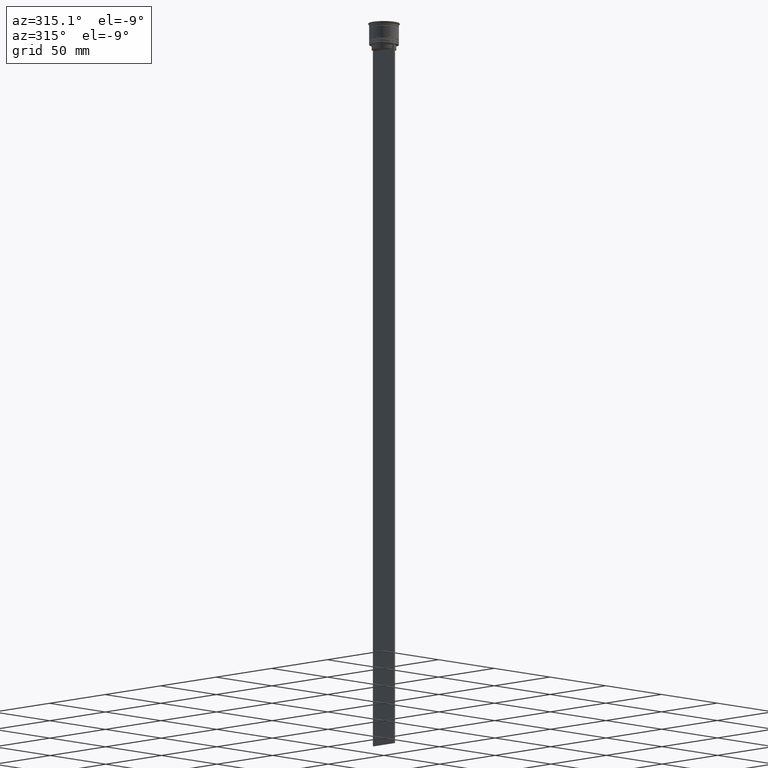
[diagram: clean part render]
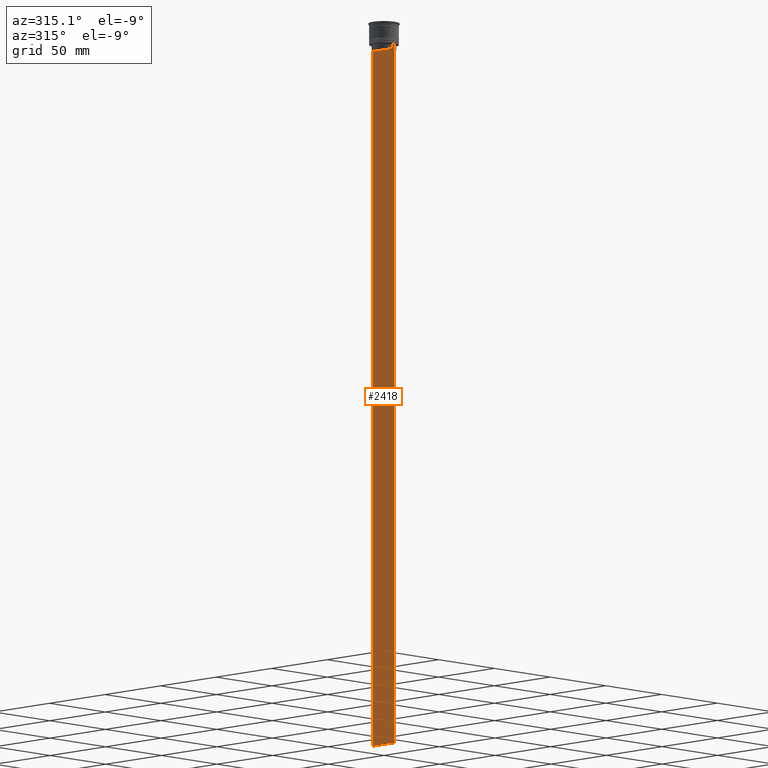
[diagram: same view with one face highlighted and labeled with its STEP entity id]
A machine part, auxiliary view. The second image highlights one B-rep face of the part: STEP entity #2418.
In plain terms, the highlighted planar face has unit normal (-1, 0, 0).
Its self-contained STEP definition (entity closure, byte-faithful):
#25 = VERTEX_POINT ( 'NONE', #2626 ) ;
#42 = CARTESIAN_POINT ( 'NONE',  ( -0.5000000000000000000, -8.051152795888546265, -14.33334334204685057 ) ) ;
#86 = LINE ( 'NONE', #1737, #244 ) ;
#113 = ORIENTED_EDGE ( 'NONE', *, *, #2617, .F. ) ;
#137 = DIRECTION ( 'NONE',  ( 0.000000000000000000, 0.000000000000000000, -1.000000000000000000 ) ) ;
#155 = DIRECTION ( 'NONE',  ( 0.000000000000000000, -1.000000000000000000, 0.000000000000000000 ) ) ;
#244 = VECTOR ( 'NONE', #2581, 1000.000000000000000 ) ;
#245 = VECTOR ( 'NONE', #935, 1000.000000000000000 ) ;
#263 = EDGE_CURVE ( 'NONE', #25, #2475, #1530, .T. ) ;
#289 = LINE ( 'NONE', #1512, #509 ) ;
#325 = ORIENTED_EDGE ( 'NONE', *, *, #2365, .F. ) ;
#340 = VERTEX_POINT ( 'NONE', #2425 ) ;
#356 = PLANE ( 'NONE',  #2187 ) ;
#372 = LINE ( 'NONE', #2005, #1143 ) ;
#379 = ORIENTED_EDGE ( 'NONE', *, *, #1345, .F. ) ;
#428 = CARTESIAN_POINT ( 'NONE',  ( -0.5000000000000000000, 8.385105843100605583, -14.00000000000000178 ) ) ;
#437 = DIRECTION ( 'NONE',  ( 0.000000000000000000, -1.000000000000000000, 0.000000000000000000 ) ) ;
#440 = VERTEX_POINT ( 'NONE', #2241 ) ;
#442 = DIRECTION ( 'NONE',  ( -1.000000000000000000, 0.000000000000000000, 0.000000000000000000 ) ) ;
#450 = VERTEX_POINT ( 'NONE', #1809 ) ;
#464 = CARTESIAN_POINT ( 'NONE',  ( -0.5000000000000000000, -7.884161337770803080, -14.50000000000000000 ) ) ;
#498 = CARTESIAN_POINT ( 'NONE',  ( -0.5000000000000000000, -7.884161337770803080, -14.50000000000000000 ) ) ;
#509 = VECTOR ( 'NONE', #1107, 1000.000000000000000 ) ;
#516 = VECTOR ( 'NONE', #1943, 1000.000000000000000 ) ;
#559 = CARTESIAN_POINT ( 'NONE',  ( -0.5000000000000000000, -9.500000000000001776, -464.0000000000000000 ) ) ;
#587 = B_SPLINE_CURVE_WITH_KNOTS ( 'NONE', 3,
 ( #464, #42, #2362, #1164 ),
 .UNSPECIFIED., .F., .F.,
 ( 4, 4 ),
 ( 0.03673372442973153046, 0.03744389749832059688 ),
 .UNSPECIFIED. ) ;
#628 = DIRECTION ( 'NONE',  ( 0.000000000000000000, 0.000000000000000000, -1.000000000000000000 ) ) ;
#672 = EDGE_CURVE ( 'NONE', #1878, #1773, #587, .T. ) ;
#707 = VERTEX_POINT ( 'NONE', #559 ) ;
#751 = EDGE_CURVE ( 'NONE', #25, #2387, #289, .T. ) ;
#764 = DIRECTION ( 'NONE',  ( 0.000000000000000000, 1.000000000000000000, 0.000000000000000000 ) ) ;
#830 = DIRECTION ( 'NONE',  ( 0.000000000000000000, 0.000000000000000000, 1.000000000000000000 ) ) ;
#833 = VERTEX_POINT ( 'NONE', #1006 ) ;
#841 = DIRECTION ( 'NONE',  ( 0.000000000000000000, -1.000000000000000000, 0.000000000000000000 ) ) ;
#886 = ORIENTED_EDGE ( 'NONE', *, *, #751, .T. ) ;
#904 = ORIENTED_EDGE ( 'NONE', *, *, #1798, .F. ) ;
#908 = CARTESIAN_POINT ( 'NONE',  ( -0.5000000000000000000, -9.500000000000001776, -14.00000000000000178 ) ) ;
#921 = CARTESIAN_POINT ( 'NONE',  ( -0.5000000000000000000, -9.500000000000001776, -464.0000000000000000 ) ) ;
#935 = DIRECTION ( 'NONE',  ( 0.000000000000000000, -1.000000000000000000, 0.000000000000000000 ) ) ;
#945 = VERTEX_POINT ( 'NONE', #1851 ) ;
#955 = ORIENTED_EDGE ( 'NONE', *, *, #1177, .F. ) ;
#961 = CARTESIAN_POINT ( 'NONE',  ( -0.5000000000000000000, 7.884161337770803080, -17.00000000000000000 ) ) ;
#967 = VECTOR ( 'NONE', #137, 1000.000000000000000 ) ;
#1006 = CARTESIAN_POINT ( 'NONE',  ( -0.5000000000000000000, -9.500000000000001776, -14.00000000000000178 ) ) ;
#1023 = VECTOR ( 'NONE', #437, 1000.000000000000000 ) ;
#1033 = LINE ( 'NONE', #2485, #2014 ) ;
#1107 = DIRECTION ( 'NONE',  ( 0.000000000000000000, 0.000000000000000000, -1.000000000000000000 ) ) ;
#1143 = VECTOR ( 'NONE', #155, 1000.000000000000000 ) ;
#1162 = CARTESIAN_POINT ( 'NONE',  ( -0.5000000000000000000, 9.499999999999998224, -464.0000000000000000 ) ) ;
#1164 = CARTESIAN_POINT ( 'NONE',  ( -0.5000000000000000000, -8.385105843100605583, -14.00000000000000178 ) ) ;
#1177 = EDGE_CURVE ( 'NONE', #340, #2366, #2570, .T. ) ;
#1211 = B_SPLINE_CURVE_WITH_KNOTS ( 'NONE', 3,
 ( #428, #1365, #1857, #1996 ),
 .UNSPECIFIED., .F., .F.,
 ( 4, 4 ),
 ( 0.01426761478740281447, 0.01497538974438914448 ),
 .UNSPECIFIED. ) ;
#1215 = ORIENTED_EDGE ( 'NONE', *, *, #672, .F. ) ;
#1345 = EDGE_CURVE ( 'NONE', #945, #833, #86, .T. ) ;
#1346 = LINE ( 'NONE', #921, #2233 ) ;
#1351 = ORIENTED_EDGE ( 'NONE', *, *, #263, .F. ) ;
#1365 = CARTESIAN_POINT ( 'NONE',  ( -0.5000000000000000000, 8.218133718559618828, -14.16667606394327983 ) ) ;
#1457 = VECTOR ( 'NONE', #628, 1000.000000000000000 ) ;
#1477 = EDGE_CURVE ( 'NONE', #2475, #450, #372, .T. ) ;
#1512 = CARTESIAN_POINT ( 'NONE',  ( -0.5000000000000000000, 9.499999999999998224, 5.026297590440445440 ) ) ;
#1528 = CARTESIAN_POINT ( 'NONE',  ( -0.5000000000000000000, -7.884161337770803080, 0.000000000000000000 ) ) ;
#1530 = LINE ( 'NONE', #908, #245 ) ;
#1643 = CARTESIAN_POINT ( 'NONE',  ( -0.5000000000000000000, -9.500000000000001776, -14.00000000000000178 ) ) ;
#1686 = CARTESIAN_POINT ( 'NONE',  ( -0.5000000000000000000, 9.386692708297204035, -14.00000000000000178 ) ) ;
#1735 = LINE ( 'NONE', #1528, #516 ) ;
#1737 = CARTESIAN_POINT ( 'NONE',  ( -0.5000000000000000000, -9.500000000000001776, -14.00000000000000178 ) ) ;
#1773 = VERTEX_POINT ( 'NONE', #2580 ) ;
#1798 = EDGE_CURVE ( 'NONE', #1773, #945, #2056, .T. ) ;
#1809 = CARTESIAN_POINT ( 'NONE',  ( -0.5000000000000000000, 8.385105843100605583, -14.00000000000000178 ) ) ;
#1851 = CARTESIAN_POINT ( 'NONE',  ( -0.5000000000000000000, -9.386692708297204035, -14.00000000000000178 ) ) ;
#1857 = CARTESIAN_POINT ( 'NONE',  ( -0.5000000000000000000, 8.051152811434374001, -14.33334332653219079 ) ) ;
#1869 = CARTESIAN_POINT ( 'NONE',  ( -0.5000000000000000000, -9.500000000000001776, 5.026297590440445440 ) ) ;
#1878 = VERTEX_POINT ( 'NONE', #498 ) ;
#1890 = LINE ( 'NONE', #1902, #1457 ) ;
#1902 = CARTESIAN_POINT ( 'NONE',  ( -0.5000000000000000000, -9.500000000000001776, 5.026297590440445440 ) ) ;
#1943 = DIRECTION ( 'NONE',  ( -0.000000000000000000, -0.000000000000000000, 1.000000000000000000 ) ) ;
#1990 = CARTESIAN_POINT ( 'NONE',  ( -0.5000000000000000000, 7.884161337770803080, 0.000000000000000000 ) ) ;
#1996 = CARTESIAN_POINT ( 'NONE',  ( -0.5000000000000000000, 7.884161337770803080, -14.50000000000000000 ) ) ;
#2005 = CARTESIAN_POINT ( 'NONE',  ( -0.5000000000000000000, -9.500000000000001776, -14.00000000000000178 ) ) ;
#2014 = VECTOR ( 'NONE', #841, 1000.000000000000000 ) ;
#2056 = LINE ( 'NONE', #1643, #1023 ) ;
#2187 = AXIS2_PLACEMENT_3D ( 'NONE', #1869, #442, #830 ) ;
#2192 = EDGE_CURVE ( 'NONE', #440, #1878, #1735, .T. ) ;
#2198 = ORIENTED_EDGE ( 'NONE', *, *, #2332, .F. ) ;
#2233 = VECTOR ( 'NONE', #764, 1000.000000000000000 ) ;
#2241 = CARTESIAN_POINT ( 'NONE',  ( -0.5000000000000000000, -7.884161337770803080, -17.00000000000000000 ) ) ;
#2244 = ORIENTED_EDGE ( 'NONE', *, *, #2192, .F. ) ;
#2256 = EDGE_CURVE ( 'NONE', #833, #707, #1890, .T. ) ;
#2287 = FACE_OUTER_BOUND ( 'NONE', #2549, .T. ) ;
#2296 = ORIENTED_EDGE ( 'NONE', *, *, #1477, .F. ) ;
#2332 = EDGE_CURVE ( 'NONE', #2366, #440, #1033, .T. ) ;
#2362 = CARTESIAN_POINT ( 'NONE',  ( -0.5000000000000000000, -8.218133703942523738, -14.16667607853445787 ) ) ;
#2365 = EDGE_CURVE ( 'NONE', #450, #340, #1211, .T. ) ;
#2366 = VERTEX_POINT ( 'NONE', #961 ) ;
#2387 = VERTEX_POINT ( 'NONE', #1162 ) ;
#2418 = ADVANCED_FACE ( 'NONE', ( #2287 ), #356, .T. ) ;
#2425 = CARTESIAN_POINT ( 'NONE',  ( -0.5000000000000000000, 7.884161337770803080, -14.50000000000000000 ) ) ;
#2475 = VERTEX_POINT ( 'NONE', #1686 ) ;
#2485 = CARTESIAN_POINT ( 'NONE',  ( -0.5000000000000000000, 7.899999999999994138, -17.00000000000000000 ) ) ;
#2549 = EDGE_LOOP ( 'NONE', ( #325, #2296, #1351, #886, #113, #2603, #379, #904, #1215, #2244, #2198, #955 ) ) ;
#2570 = LINE ( 'NONE', #1990, #967 ) ;
#2580 = CARTESIAN_POINT ( 'NONE',  ( -0.5000000000000000000, -8.385105843100605583, -14.00000000000000178 ) ) ;
#2581 = DIRECTION ( 'NONE',  ( 0.000000000000000000, -1.000000000000000000, 0.000000000000000000 ) ) ;
#2603 = ORIENTED_EDGE ( 'NONE', *, *, #2256, .F. ) ;
#2617 = EDGE_CURVE ( 'NONE', #707, #2387, #1346, .T. ) ;
#2626 = CARTESIAN_POINT ( 'NONE',  ( -0.5000000000000000000, 9.499999999999994671, -14.00000000000000178 ) ) ;